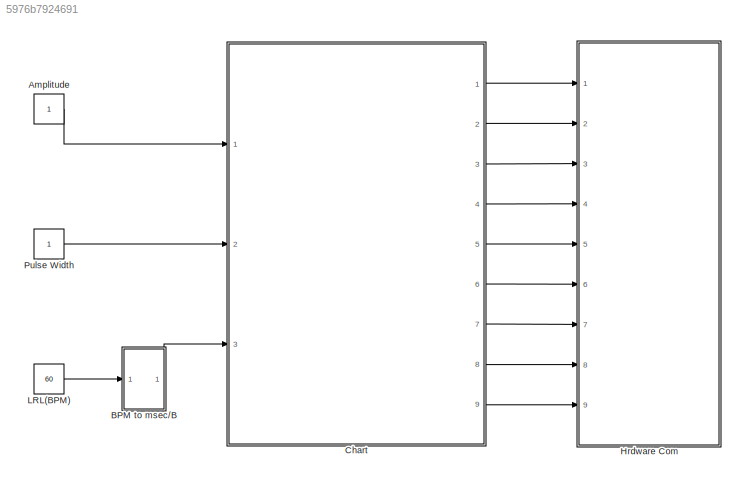
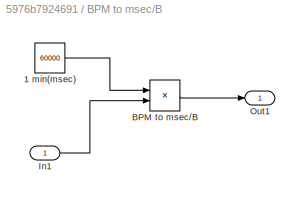
MODEL slx_5976b7924691
KIND model
CONFIG AbsTol = auto
CONFIG EnableMultiTasking = on
CONFIG FixedStep = 0.001
CONFIG MaxStep = auto
CONFIG MinStep = auto
CONFIG RelTol = 1e-3
CONFIG SampleTimeConstraint = Unconstrained
CONFIG Solver = FixedStepAuto
CONFIG SolverName = FixedStepAuto
CONFIG StartTime = 0.0
CONFIG StopTime = inf
BLOCK [Constant] Amplitude
  OutDataTypeStr = double
BLOCK [SubSystem] BPM to msec//B 
  Ports = [1, 1]
  RequestExecContextInheritance = off
BLOCK [Constant] BPM to msec//B /1 min(msec)
  OutDataTypeStr = double
  Value = 60000
BLOCK [Product] BPM to msec//B /BPM to msec//B 
  Inputs = */
  OutDataTypeStr = uint16
  Ports = [2, 1]
  RndMeth = Nearest
BLOCK [Inport] BPM to msec//B /In1
BLOCK [Outport] BPM to msec//B /Out1
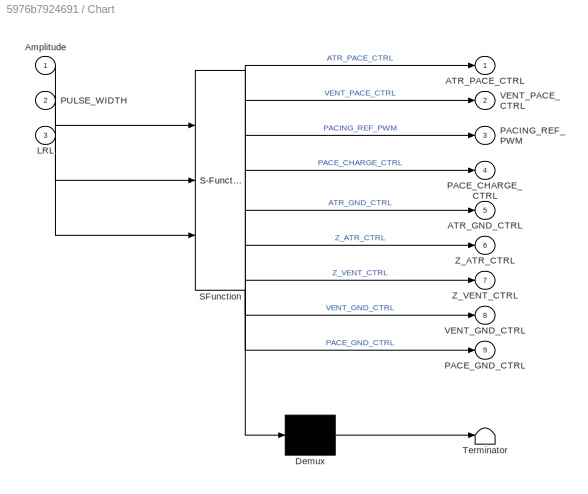
BLOCK [SubSystem] Chart
  ErrorFcn = Stateflow.Translate.translate
  PermitHierarchicalResolution = ExplicitOnly
  Ports = [3, 9]
  RequestExecContextInheritance = off
  SFBlockType = Chart
  TreatAsAtomicUnit = on
BLOCK [Demux] Chart/ Demux 
  Outputs = 1
  Ports = [1, 1]
BLOCK [S-Function] Chart/ SFunction 
  EnableBusSupport = on
  FunctionName = sf_sfun
  PortCounts = [3 10]
  Ports = [3, 10]
  SFcnIsStateOwnerBlock = off
  SFunctionDeploymentMode = off
  Tag = Stateflow S-Function 3
BLOCK [Terminator] Chart/ Terminator 
BLOCK [Outport] Chart/ATR_GND_CTRL
  Port = 5
BLOCK [Outport] Chart/ATR_PACE_CTRL
BLOCK [Inport] Chart/Amplitude
BLOCK [Inport] Chart/LRL
  Port = 3
BLOCK [Outport] Chart/PACE_CHARGE_CTRL
  Port = 4
BLOCK [Outport] Chart/PACE_GND_CTRL
  Port = 9
BLOCK [Outport] Chart/PACING_REF_PWM
  Port = 3
BLOCK [Inport] Chart/PULSE_WIDTH
  Port = 2
BLOCK [Outport] Chart/VENT_GND_CTRL
  Port = 8
BLOCK [Outport] Chart/VENT_PACE_CTRL
  Port = 2
BLOCK [Outport] Chart/Z_ATR_CTRL
  Port = 6
BLOCK [Outport] Chart/Z_VENT_CTRL
  Port = 7
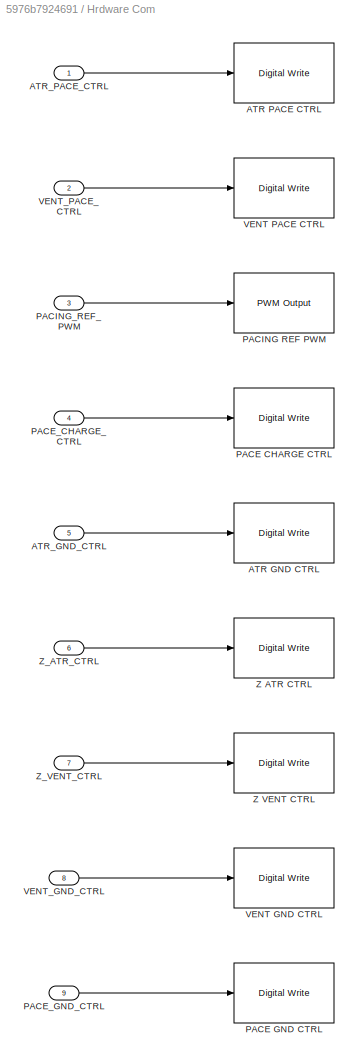
BLOCK [SubSystem] Hrdware Com
  Ports = [9]
  RequestExecContextInheritance = off
BLOCK [Reference] Hrdware Com/ATR GND CTRL   REF=frdmk64flib/Digital Write
  Ports = [1]
  SourceBlock = frdmk64flib/Digital Write
  SourceProductBaseCode = EC_FRDM_K64F
  SourceType = freedomk64f.DigitalWrite
BLOCK [Reference] Hrdware Com/ATR PACE CTRL  REF=frdmk64flib/Digital Write
  Ports = [1]
  SourceBlock = frdmk64flib/Digital Write
  SourceProductBaseCode = EC_FRDM_K64F
  SourceType = freedomk64f.DigitalWrite
BLOCK [Inport] Hrdware Com/ATR_GND_CTRL
  Port = 5
BLOCK [Inport] Hrdware Com/ATR_PACE_CTRL
BLOCK [Reference] Hrdware Com/PACE CHARGE CTRL  REF=frdmk64flib/Digital Write
  Ports = [1]
  SourceBlock = frdmk64flib/Digital Write
  SourceProductBaseCode = EC_FRDM_K64F
  SourceType = freedomk64f.DigitalWrite
BLOCK [Reference] Hrdware Com/PACE GND CTRL  REF=frdmk64flib/Digital Write
  Ports = [1]
  SourceBlock = frdmk64flib/Digital Write
  SourceProductBaseCode = EC_FRDM_K64F
  SourceType = freedomk64f.DigitalWrite
BLOCK [Inport] Hrdware Com/PACE_CHARGE_CTRL
  Port = 4
BLOCK [Inport] Hrdware Com/PACE_GND_CTRL
  Port = 9
BLOCK [Reference] Hrdware Com/PACING REF PWM  REF=frdmk64flib/PWM Output
  Ports = [1]
  SourceBlock = frdmk64flib/PWM Output
  SourceProductBaseCode = EC_FRDM_K64F
  SourceType = freedomk64f.PWMOutput
BLOCK [Inport] Hrdware Com/PACING_REF_PWM
  Port = 3
BLOCK [Reference] Hrdware Com/VENT GND CTRL  REF=frdmk64flib/Digital Write
  Ports = [1]
  SourceBlock = frdmk64flib/Digital Write
  SourceProductBaseCode = EC_FRDM_K64F
  SourceType = freedomk64f.DigitalWrite
BLOCK [Reference] Hrdware Com/VENT PACE CTRL  REF=frdmk64flib/Digital Write
  Ports = [1]
  SourceBlock = frdmk64flib/Digital Write
  SourceProductBaseCode = EC_FRDM_K64F
  SourceType = freedomk64f.DigitalWrite
BLOCK [Inport] Hrdware Com/VENT_GND_CTRL
  Port = 8
BLOCK [Inport] Hrdware Com/VENT_PACE_CTRL
  Port = 2
BLOCK [Reference] Hrdware Com/Z ATR CTRL   REF=frdmk64flib/Digital Write
  Ports = [1]
  SourceBlock = frdmk64flib/Digital Write
  SourceProductBaseCode = EC_FRDM_K64F
  SourceType = freedomk64f.DigitalWrite
BLOCK [Reference] Hrdware Com/Z VENT CTRL   REF=frdmk64flib/Digital Write
  Ports = [1]
  SourceBlock = frdmk64flib/Digital Write
  SourceProductBaseCode = EC_FRDM_K64F
  SourceType = freedomk64f.DigitalWrite
BLOCK [Inport] Hrdware Com/Z_ATR_CTRL 
  Port = 6
BLOCK [Inport] Hrdware Com/Z_VENT_CTRL 
  Port = 7
BLOCK [Constant] LRL(BPM)
  OutDataTypeStr = double
  Value = 60
BLOCK [Constant] Pulse Width
  OutDataTypeStr = uint16
LINE Amplitude:1 -> Chart:1
LINE BPM to msec//B /1 min(msec):1 -> BPM to msec//B /BPM to msec//B :1
LINE BPM to msec//B /BPM to msec//B :1 -> BPM to msec//B /Out1:1
LINE BPM to msec//B /In1:1 -> BPM to msec//B /BPM to msec//B :2
LINE BPM to msec//B :1 -> Chart:3
LINE Chart:1 -> Hrdware Com:1
LINE Chart:2 -> Hrdware Com:2
LINE Chart:3 -> Hrdware Com:3
LINE Chart:4 -> Hrdware Com:4
LINE Chart:5 -> Hrdware Com:5
LINE Chart:6 -> Hrdware Com:6
LINE Chart:7 -> Hrdware Com:7
LINE Chart:8 -> Hrdware Com:8
LINE Chart:9 -> Hrdware Com:9
LINE Hrdware Com/ATR_GND_CTRL:1 -> Hrdware Com/ATR GND CTRL :1
LINE Hrdware Com/ATR_PACE_CTRL:1 -> Hrdware Com/ATR PACE CTRL:1
LINE Hrdware Com/PACE_CHARGE_CTRL:1 -> Hrdware Com/PACE CHARGE CTRL:1
LINE Hrdware Com/PACE_GND_CTRL:1 -> Hrdware Com/PACE GND CTRL:1
LINE Hrdware Com/PACING_REF_PWM:1 -> Hrdware Com/PACING REF PWM:1
LINE Hrdware Com/VENT_GND_CTRL:1 -> Hrdware Com/VENT GND CTRL:1
LINE Hrdware Com/VENT_PACE_CTRL:1 -> Hrdware Com/VENT PACE CTRL:1
LINE Hrdware Com/Z_ATR_CTRL :1 -> Hrdware Com/Z ATR CTRL :1
LINE Hrdware Com/Z_VENT_CTRL :1 -> Hrdware Com/Z VENT CTRL :1
LINE LRL(BPM):1 -> BPM to msec//B :1
LINE Pulse Width:1 -> Chart:2
CHART Chart states=2 transitions=3
  STATE_LABEL 'Charging_and_Discharging\n\nentry:\nPACE_GND_CTRL=true;\nATR_PACE_CTRL=false;\nVENT_PACE_CTRL=false;\nPACING_REF_PWM=uint8(Amplitude*20);\nPACE_CHARGE_CTRL=true;\nZ_ATR_CTRL=false;\nZ_VENT_CTRL=false;\nVENT_GND_CTRL=false;\nATR_GND_CTRL=true;'
  STATE_LABEL 'A_Pacing\n\nentry:\nPACE_CHARGE_CTRL=false;\nPACE_GND_CTRL=true;\nATR_GND_CTRL=false;\nZ_ATR_CTRL=false;\nZ_VENT_CTRL=false;\nVENT_GND_CTRL=false;\nVENT_PACE_CTRL=false;\nATR_PACE_CTRL=true;'
CHART  states=0 transitions=0
